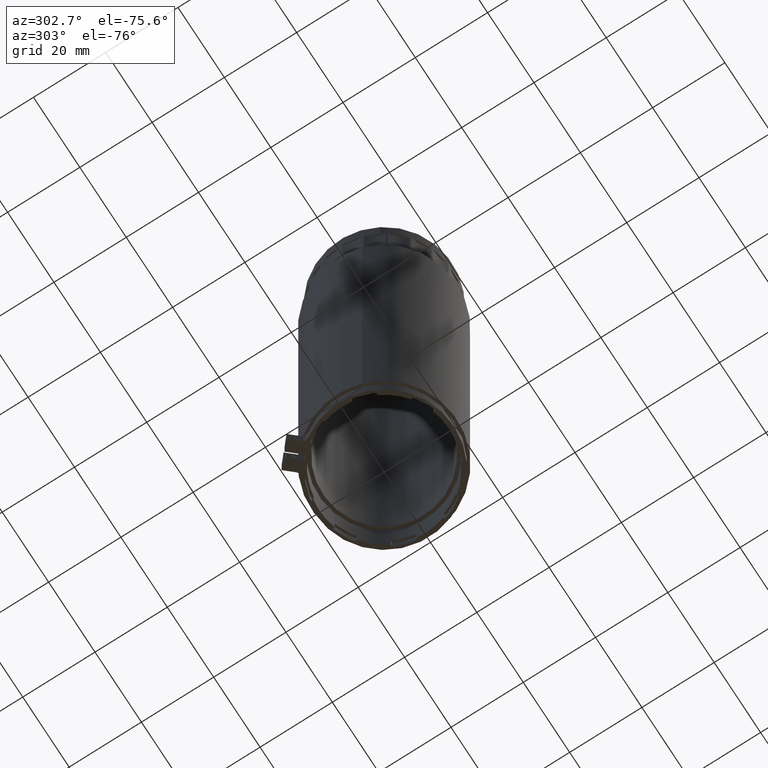
[diagram: clean part render]
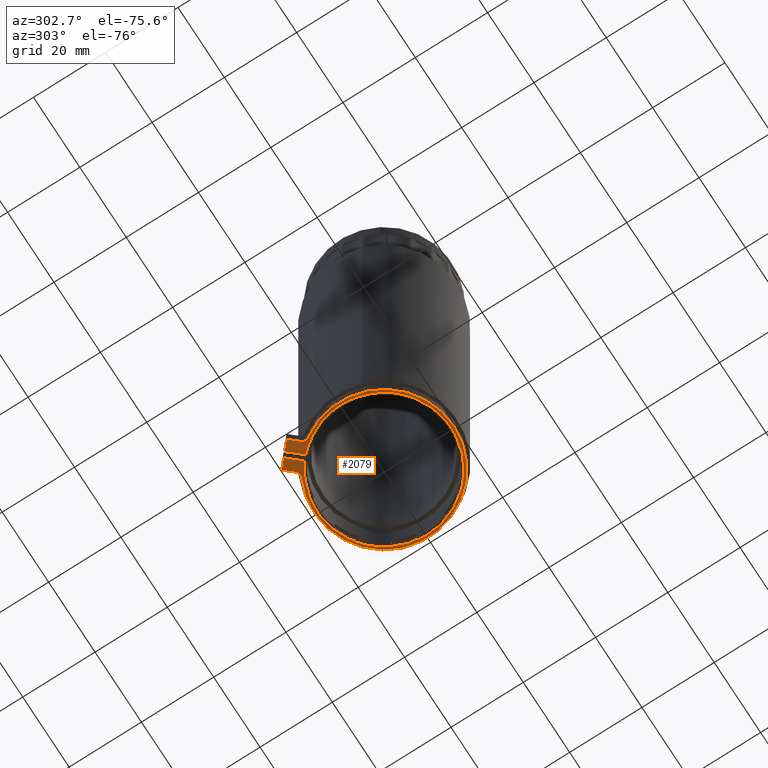
[diagram: same view with one face highlighted and labeled with its STEP entity id]
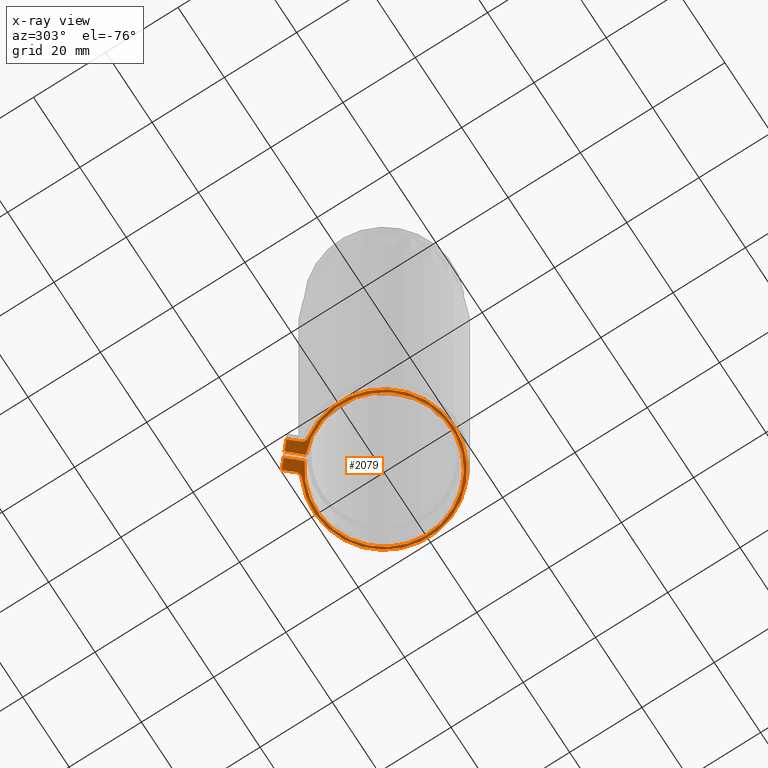
[diagram: x-ray of the same camera — body ghosted, the highlighted face saturated]
A machine part, auxiliary view. The second image highlights one B-rep face of the part: STEP entity #2079.
The next image is the same camera in x-ray: the body ghosted, the highlighted face saturated — about 0% of this face is hidden behind the body in this view.
In plain terms, the highlighted planar face has unit normal (0, -0, 1).
Its self-contained STEP definition (entity closure, byte-faithful):
#2 = DIRECTION ( 'NONE',  ( 0.6621824331921666307, -0.7493426620523496728, -0.000000000000000000 ) ) ;
#43 = CARTESIAN_POINT ( 'NONE',  ( -15.04365121214417478, 18.15653912098567702, 190.5586631449634751 ) ) ;
#157 = CARTESIAN_POINT ( 'NONE',  ( -16.13129395454377857, 12.59163327731317494, 190.5586631449634751 ) ) ;
#274 = LINE ( 'NONE', #4602, #1295 ) ;
#356 = CARTESIAN_POINT ( 'NONE',  ( 2.821865284829212506, 2.469934991806418179, 190.5586631449634751 ) ) ;
#389 = ORIENTED_EDGE ( 'NONE', *, *, #2202, .F. ) ;
#392 = CARTESIAN_POINT ( 'NONE',  ( -11.73273904618334029, 14.40982581072392676, 190.5586631449634751 ) ) ;
#403 = LINE ( 'NONE', #4674, #1045 ) ;
#467 = DIRECTION ( 'NONE',  ( 0.000000000000000000, -0.000000000000000000, -1.000000000000000000 ) ) ;
#577 = PLANE ( 'NONE',  #1726 ) ;
#643 = LINE ( 'NONE', #4458, #2926 ) ;
#670 = DIRECTION ( 'NONE',  ( -0.7493426620523497839, -0.6621824331921664086, 0.000000000000000000 ) ) ;
#740 = VERTEX_POINT ( 'NONE', #779 ) ;
#757 = VERTEX_POINT ( 'NONE', #392 ) ;
#779 = CARTESIAN_POINT ( 'NONE',  ( -8.709663526579188186, 17.21301855577996065, 190.5586631449634751 ) ) ;
#787 = DIRECTION ( 'NONE',  ( -0.7493426620523496728, -0.6621824331921666307, -0.000000000000000000 ) ) ;
#872 = DIRECTION ( 'NONE',  ( 0.000000000000000000, -0.000000000000000000, -1.000000000000000000 ) ) ;
#873 = EDGE_CURVE ( 'NONE', #757, #2240, #3999, .T. ) ;
#876 = AXIS2_PLACEMENT_3D ( 'NONE', #1626, #467, #4289 ) ;
#945 = CARTESIAN_POINT ( 'NONE',  ( -12.79562322598712498, 20.14308642056217735, 190.5586631449634751 ) ) ;
#990 = DIRECTION ( 'NONE',  ( -0.7493426620523496728, -0.6621824331921666307, -0.000000000000000000 ) ) ;
#1005 = CARTESIAN_POINT ( 'NONE',  ( -9.387209996072630958, 18.55127517604266885, 190.5586631449634751 ) ) ;
#1030 = VERTEX_POINT ( 'NONE', #3078 ) ;
#1045 = VECTOR ( 'NONE', #3144, 999.9999999999998863 ) ;
#1295 = VECTOR ( 'NONE', #990, 999.9999999999998863 ) ;
#1520 = EDGE_CURVE ( 'NONE', #740, #2250, #2947, .T. ) ;
#1626 = CARTESIAN_POINT ( 'NONE',  ( -17.25530794762230613, 11.59835962752492478, 190.5586631449634751 ) ) ;
#1648 = EDGE_CURVE ( 'NONE', #2172, #757, #4302, .T. ) ;
#1726 = AXIS2_PLACEMENT_3D ( 'NONE', #1818, #3696, #4544 ) ;
#1818 = CARTESIAN_POINT ( 'NONE',  ( 0.01183030213289958804, -0.01324913266420765443, 190.5586631449634751 ) ) ;
#1837 = CARTESIAN_POINT ( 'NONE',  ( -16.01057569962774352, 10.76131624107329543, 190.5586631449634751 ) ) ;
#1868 = FACE_OUTER_BOUND ( 'NONE', #3555, .T. ) ;
#2055 = AXIS2_PLACEMENT_3D ( 'NONE', #4807, #872, #670 ) ;
#2079 = ADVANCED_FACE ( 'NONE', ( #1868 ), #577, .F. ) ;
#2090 = DIRECTION ( 'NONE',  ( -0.000000000000000000, 0.000000000000000000, 1.000000000000000000 ) ) ;
#2172 = VERTEX_POINT ( 'NONE', #43 ) ;
#2202 = EDGE_CURVE ( 'NONE', #3969, #2172, #4672, .T. ) ;
#2240 = VERTEX_POINT ( 'NONE', #2273 ) ;
#2250 = VERTEX_POINT ( 'NONE', #5060 ) ;
#2273 = CARTESIAN_POINT ( 'NONE',  ( -12.85675303926186785, 13.41655216093568015, 190.5586631449634751 ) ) ;
#2295 = ORIENTED_EDGE ( 'NONE', *, *, #4334, .F. ) ;
#2351 = DIRECTION ( 'NONE',  ( -0.6621824331921666307, 0.7493426620523496728, 0.000000000000000000 ) ) ;
#2375 = LINE ( 'NONE', #356, #4799 ) ;
#2462 = DIRECTION ( 'NONE',  ( -0.7493426620523495618, -0.6621824331921665197, 0.000000000000000000 ) ) ;
#2478 = VERTEX_POINT ( 'NONE', #1837 ) ;
#2559 = CARTESIAN_POINT ( 'NONE',  ( 0.01183030213289958804, -0.01324913266420765443, 190.5586631449634751 ) ) ;
#2562 = DIRECTION ( 'NONE',  ( -0.7493426620523493398, -0.6621824331921669637, 0.000000000000000000 ) ) ;
#2583 = DIRECTION ( 'NONE',  ( -0.6621824331921666307, 0.7493426620523496728, 0.000000000000000000 ) ) ;
#2742 = CARTESIAN_POINT ( 'NONE',  ( -18.41569319137974858, 15.17671817162092651, 190.5586631449634751 ) ) ;
#2899 = DIRECTION ( 'NONE',  ( 0.000000000000000000, -0.000000000000000000, -1.000000000000000000 ) ) ;
#2902 = EDGE_CURVE ( 'NONE', #2240, #1030, #643, .T. ) ;
#2926 = VECTOR ( 'NONE', #2583, 999.9999999999998863 ) ;
#2947 = CIRCLE ( 'NONE', #3347, 1.500000000000000000 ) ;
#3020 = VERTEX_POINT ( 'NONE', #157 ) ;
#3063 = ORIENTED_EDGE ( 'NONE', *, *, #3509, .F. ) ;
#3078 = CARTESIAN_POINT ( 'NONE',  ( -16.16766520522269701, 17.16326547119742685, 190.5586631449634751 ) ) ;
#3144 = DIRECTION ( 'NONE',  ( 0.6621824331921666307, -0.7493426620523496728, -0.000000000000000000 ) ) ;
#3147 = CARTESIAN_POINT ( 'NONE',  ( 0.5738372986721630431, 0.4833876922299182866, 190.5586631449634751 ) ) ;
#3170 = AXIS2_PLACEMENT_3D ( 'NONE', #2559, #2090, #2462 ) ;
#3337 = ORIENTED_EDGE ( 'NONE', *, *, #873, .F. ) ;
#3347 = AXIS2_PLACEMENT_3D ( 'NONE', #1005, #2899, #2562 ) ;
#3390 = ORIENTED_EDGE ( 'NONE', *, *, #2902, .F. ) ;
#3509 = EDGE_CURVE ( 'NONE', #3020, #2478, #3570, .T. ) ;
#3547 = EDGE_CURVE ( 'NONE', #2478, #740, #4064, .T. ) ;
#3555 = EDGE_LOOP ( 'NONE', ( #4661, #389, #4951, #4173, #3730, #3063, #2295, #4911, #3390, #3337 ) ) ;
#3570 = CIRCLE ( 'NONE', #876, 1.500000000000001332 ) ;
#3696 = DIRECTION ( 'NONE',  ( 0.000000000000000000, -0.000000000000000000, 1.000000000000000000 ) ) ;
#3730 = ORIENTED_EDGE ( 'NONE', *, *, #3547, .F. ) ;
#3969 = VERTEX_POINT ( 'NONE', #945 ) ;
#3999 = CIRCLE ( 'NONE', #2055, 18.60000000000000142 ) ;
#4064 = CIRCLE ( 'NONE', #3170, 19.30825608588716236 ) ;
#4173 = ORIENTED_EDGE ( 'NONE', *, *, #1520, .F. ) ;
#4227 = EDGE_CURVE ( 'NONE', #1030, #4846, #274, .T. ) ;
#4289 = DIRECTION ( 'NONE',  ( -0.7493426620523498949, -0.6621824331921662976, 0.000000000000000000 ) ) ;
#4295 = CARTESIAN_POINT ( 'NONE',  ( -15.60565820868344211, 17.65990229609154838, 190.5586631449634751 ) ) ;
#4302 = LINE ( 'NONE', #3147, #4580 ) ;
#4334 = EDGE_CURVE ( 'NONE', #4846, #3020, #403, .T. ) ;
#4386 = EDGE_CURVE ( 'NONE', #2250, #3969, #2375, .T. ) ;
#4458 = CARTESIAN_POINT ( 'NONE',  ( -0.5501766944063615217, -0.5098859575583314374, 190.5586631449634751 ) ) ;
#4544 = DIRECTION ( 'NONE',  ( 0.7493426620523496728, 0.6621824331921666307, 0.000000000000000000 ) ) ;
#4580 = VECTOR ( 'NONE', #2, 999.9999999999998863 ) ;
#4602 = CARTESIAN_POINT ( 'NONE',  ( -15.60565820868344211, 17.65990229609154838, 190.5586631449634751 ) ) ;
#4661 = ORIENTED_EDGE ( 'NONE', *, *, #1648, .F. ) ;
#4672 = LINE ( 'NONE', #4295, #4820 ) ;
#4674 = CARTESIAN_POINT ( 'NONE',  ( -2.798204680563410651, -2.496433257134830885, 190.5586631449634751 ) ) ;
#4799 = VECTOR ( 'NONE', #2351, 999.9999999999998863 ) ;
#4807 = CARTESIAN_POINT ( 'NONE',  ( 0.01183030213289958804, -0.01324913266420765443, 190.5586631449634751 ) ) ;
#4820 = VECTOR ( 'NONE', #787, 999.9999999999998863 ) ;
#4846 = VERTEX_POINT ( 'NONE', #2742 ) ;
#4911 = ORIENTED_EDGE ( 'NONE', *, *, #4227, .F. ) ;
#4951 = ORIENTED_EDGE ( 'NONE', *, *, #4386, .F. ) ;
#5060 = CARTESIAN_POINT ( 'NONE',  ( -10.51122398915115497, 17.55800152625442223, 190.5586631449634751 ) ) ;